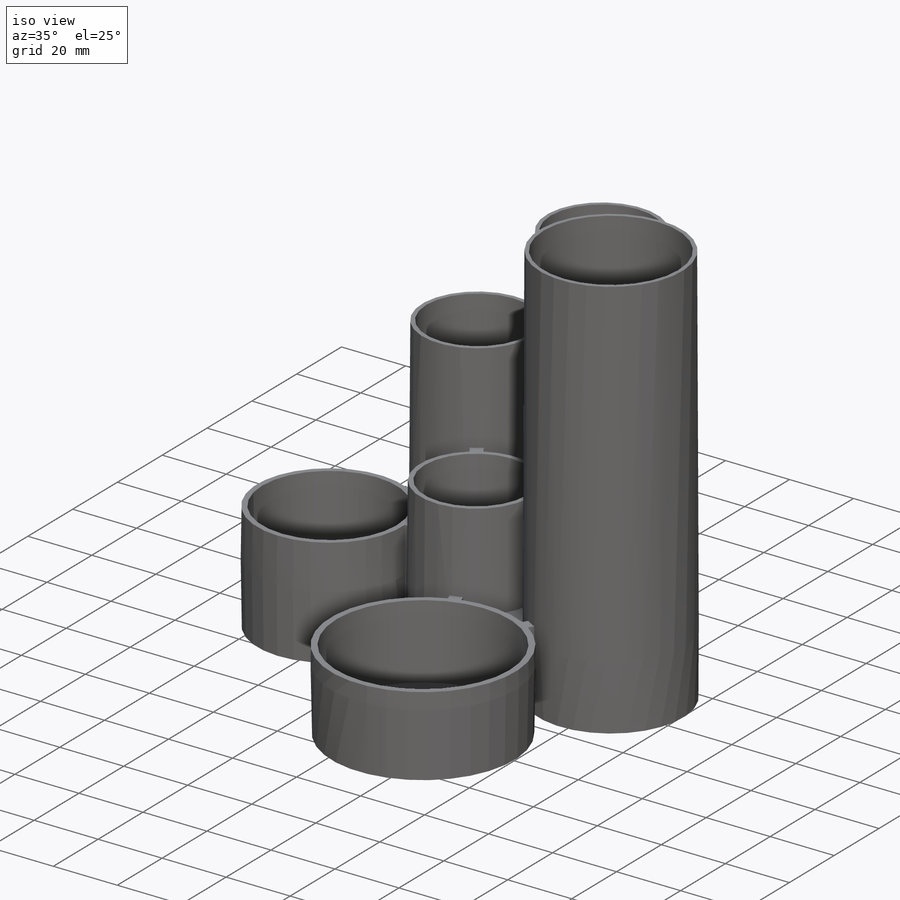
[diagram: iso view]
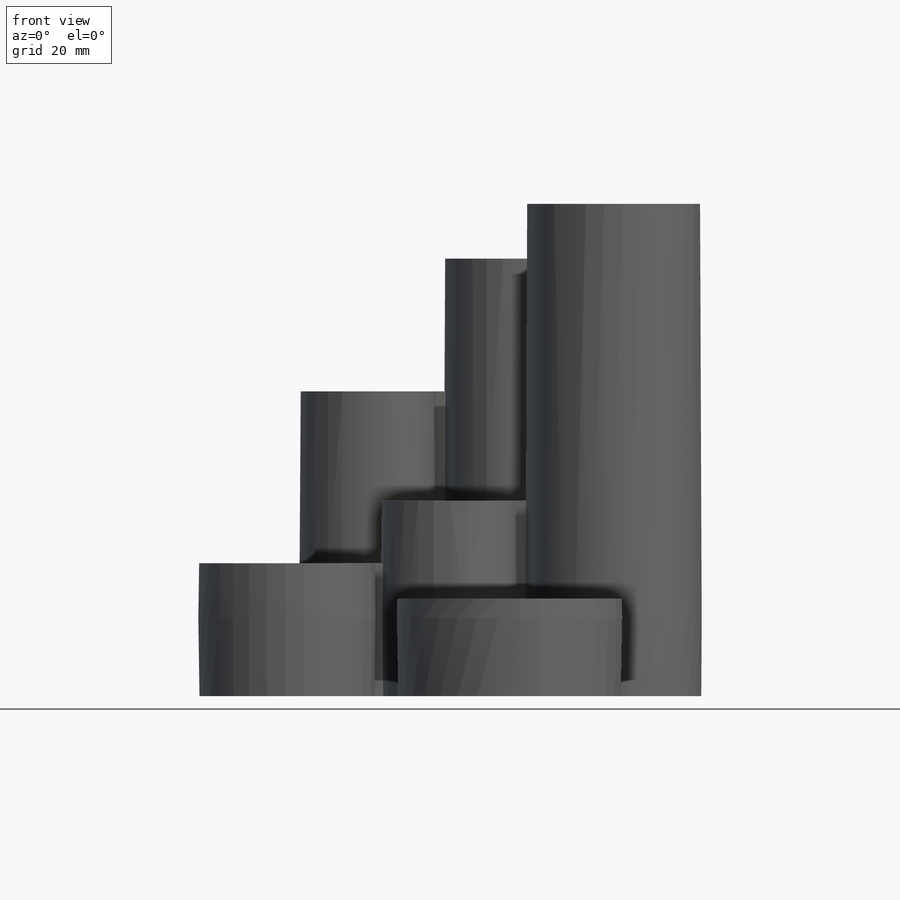
[diagram: front view]
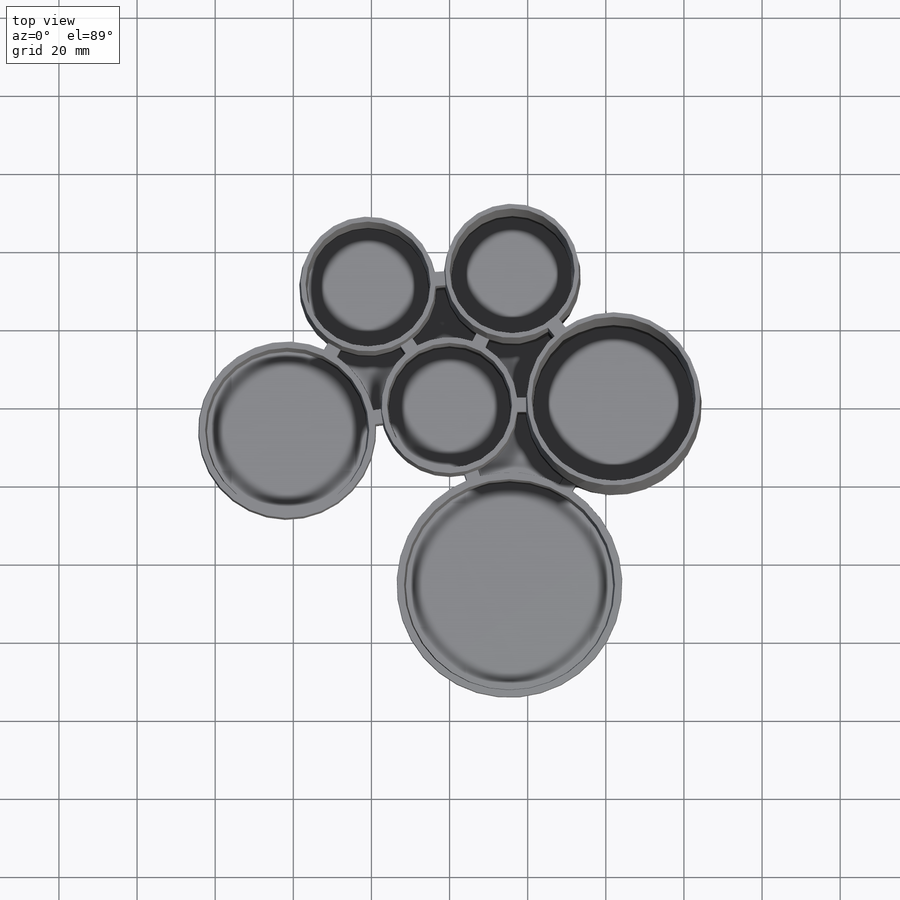
[diagram: top view]
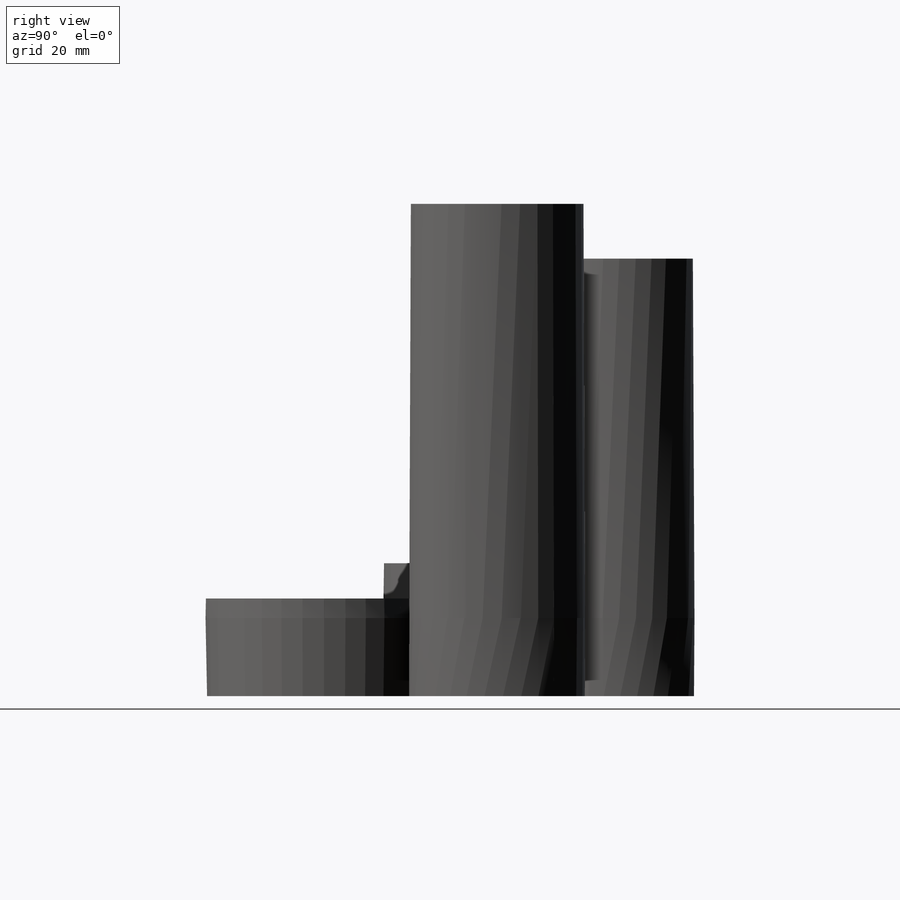
[diagram: right view]
SOLIDWORKS PART (.sldprt)
format: sldprt  version: not decoded by parser v0  size: 844,800 bytes
history: native  units: mm
features: sketch x19, extrude x16, plane x16, revolve x6, material x1 + 2 further entries (+16 scaffold rows collapsed)
feature tree (76):
  scaffold x16  (default folders/planes/origin — collapsed)
  material  "PVC 0.007 Plasticized"
  "Core Surface Bodies"
  "Parting Surface Bodies"
  sketch  "Sketch1"  dims[D1=37.0mm D2=47.0mm D3=47.0mm D4=37.0mm D5=37.0mm D6=59.0mm D7=45.0mm D8=35.0mm D9=35.0mm D10=35.0mm D11=45.0mm D12=57.0mm]
  extrude  "Boss-Extrude1"  Depth=2mm
  extrude  "Axis2"  [1 undecoded]
  extrude  "Axis3"  [1 undecoded]
  extrude  "Axis4"  [1 undecoded]
  extrude  "Axis5"  [1 undecoded]
  extrude  "Axis6"  [1 undecoded]
  plane  "Plane1"
  sketch  "Sketch2"  dims[c1.D1=23.0mm c1.D2=34.0mm c1.D3=23.0mm c1.D4=20.0mm c1.D5=~34.029409mm c2.D2=34.0mm c2.D1=2.0mm]
  revolve  "Revolve1"  Angle=360deg
  sketch  "Sketch3"  dims[c1.D1=17.5mm c1.D2=18.0mm c1.D4=50.0mm c1.D5=20.0mm c1.D6=~50.019999mm c2.D4=50.0mm c2.D3=2.0mm]
  revolve  "Revolve2"  Angle=360deg
  plane  "Plane2"
  sketch  "Sketch4"  dims[c1.D1=22.5mm c1.D2=23.0mm c1.D3=126.0mm c1.D5=20.0mm c2.D3=126.0mm c2.D4=2.0mm]
  revolve  "Revolve3"  Angle=360deg
  plane  "Plane3"
  sketch  "Sketch5"  dims[c1.D1=17.5mm c1.D2=18.0mm c1.D3=112.0mm c1.D5=20.0mm c2.D3=112.0mm c2.D4=2.0mm]
  revolve  "Revolve4"  Angle=360deg
  sketch  "Sketch6"  dims[c1.D1=17.5mm c1.D2=18.0mm c1.D3=78.0mm c1.D5=20.0mm c2.D3=78.0mm c2.D4=2.0mm]
  revolve  "Revolve5"  Angle=360deg
  plane  "Plane4"
  sketch  "Sketch7"  dims[c1.D1=28.5mm c1.D2=29.0mm c1.D3=25.0mm c1.D5=20.0mm c2.D3=25.0mm c2.D4=2.0mm]
  revolve  "Revolve6"  Angle=360deg
  plane  "Plane5"  Offset=18mm
  sketch  "Sketch17"
  extrude  "Boss-Extrude12"  Depth=5mm
  plane  "Plane6"  Offset=2mm
  sketch  "Sketch18"  dims[c1.D1=59.0mm c1.D2=37.0mm c1.D3=47.0mm c1.D4=47.0mm c1.D5=37.0mm c1.D6=37.0mm c2.D1=29.5mm c2.D2=29.5mm c2.D3=23.5mm c2.D4=18.5mm c2.D5=18.5mm c2.D6=18.5mm c2.D7=18.5mm c2.D8=23.5mm]
  plane  "Plane7"
  sketch  "Sketch19"  dims[D1=2.0mm D2=1.8mm D3=1.8mm]
  extrude  "Boss-Extrude14"  Depth=1.7mm
  plane  "Plane8"
  sketch  "Sketch20"  dims[D1=1.8mm D2=1.8mm D3=2.0mm]
  extrude  "Boss-Extrude15"  Depth=1.7mm
  plane  "Plane9"
  sketch  "Sketch21"  dims[D1=1.8mm D2=1.8mm D3=2.0mm]
  extrude  "Boss-Extrude16"  Depth=1.7mm
  plane  "Plane10"
  sketch  "Sketch22"  dims[D1=1.8mm D2=2.0mm D3=1.8mm]
  extrude  "Boss-Extrude17"  Depth=1.7mm
  plane  "Plane11"
  sketch  "Sketch23"  dims[D1=1.8mm D2=1.8mm D3=2.0mm]
  extrude  "Boss-Extrude18"  Depth=1.7mm
  plane  "Plane12"
  sketch  "Sketch24"  dims[D1=1.8mm D2=1.8mm D3=2.0mm]
  extrude  "Boss-Extrude19"  Depth=1.7mm
  plane  "Plane13"
  sketch  "Sketch25"  dims[D1=1.8mm D2=1.8mm D3=2.0mm]
  extrude  "Boss-Extrude20"  Depth=1.7mm
  plane  "Plane14"
  sketch  "Sketch26"  dims[D1=1.8mm D2=1.8mm D3=2.0mm]
  extrude  "Boss-Extrude21"  Depth=1.7mm
  plane  "Plane15"
  sketch  "Sketch27"  dims[D1=1.8mm D2=1.8mm D3=2.0mm]
  extrude  "Boss-Extrude22"  Depth=1.7mm
  plane  "Plane18"
  sketch  "Sketch33"
decode coverage: 34 of 41 modeling features carry decoded parameters; 2 rows unclassified (native names shown)
note: ~ marks probable driven/reference dimensions
note: 5 parameter values undecoded
summary: no parameter record found for 5 features
note: suppression state not decoded; provenance and decode notes live in map.json
